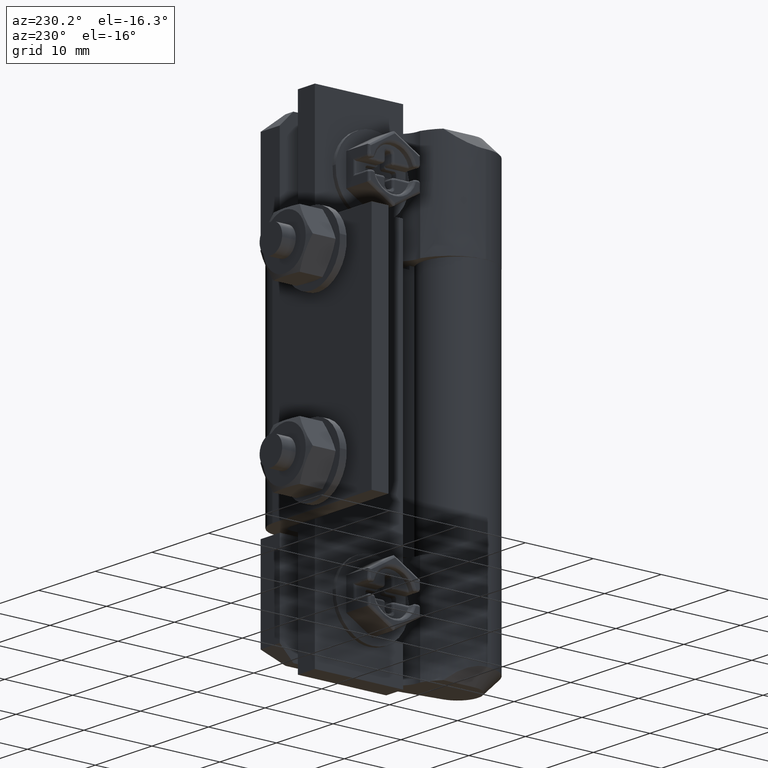
[diagram: clean part render]
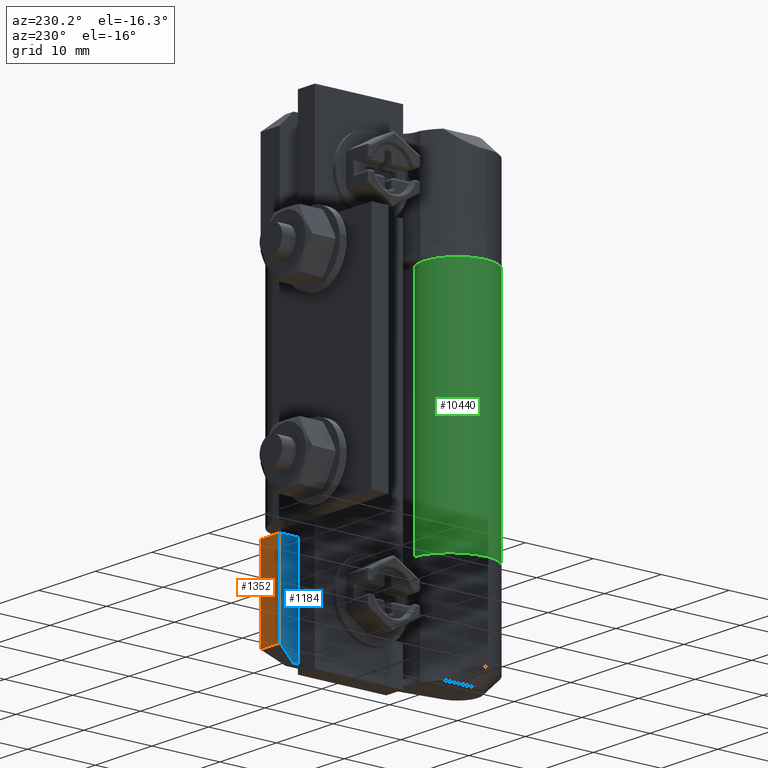
[diagram: same view with three faces highlighted in distinct colors, each labeled with its STEP entity id]
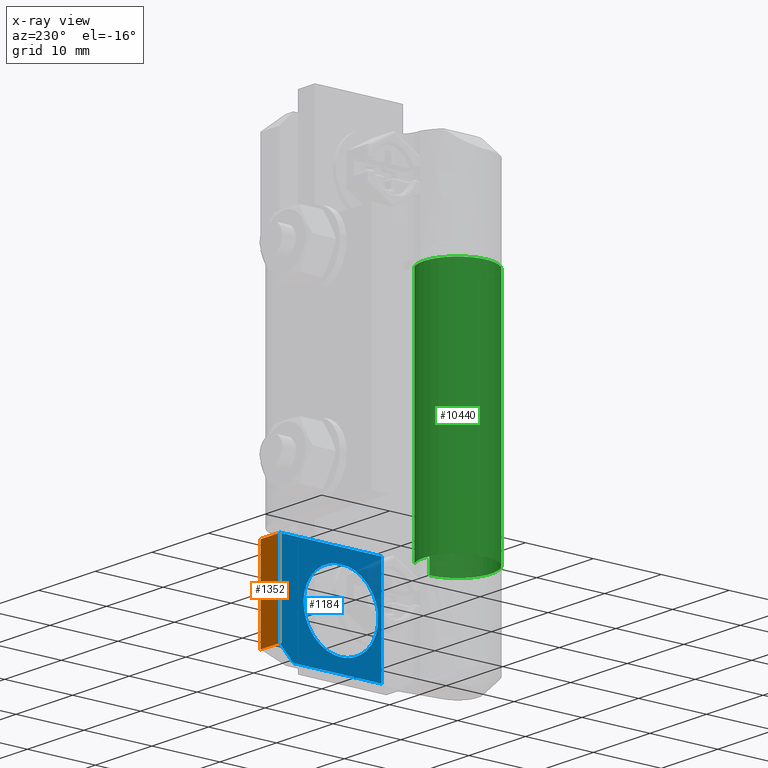
[diagram: x-ray of the same camera — body ghosted, the three highlighted faces saturated]
A machine part, auxiliary view with three faces highlighted in distinct colors.
The next image is the same camera in x-ray (body ghosted, the three faces saturated) — at least one of them is partly hidden behind the body in this view.
Their STEP definitions:

[orange] entity #1352 — the highlighted face is a freeform B-spline surface patch.
#970=CARTESIAN_POINT('',(2.600000123493400,24.000001139938849,1.999999999999820));
#971=VERTEX_POINT('',#970);
#977=CARTESIAN_POINT('',(6.000000284984820,24.000001139938849,2.0));
#978=VERTEX_POINT('',#977);
#979=CARTESIAN_POINT('',(2.600000123493400,24.000001139938849,1.999999999999820));
#980=CARTESIAN_POINT('',(6.000000284984820,24.000001139938849,2.0));
#981=QUASI_UNIFORM_CURVE('',1,(#979,#980),.UNSPECIFIED.,.F.,.U.);
#982=EDGE_CURVE('',#971,#978,#981,.T.);
#1164=CARTESIAN_POINT('',(2.600000123493400,24.000001139938849,15.000000712461750));
#1165=VERTEX_POINT('',#1164);
#1171=CARTESIAN_POINT('',(2.600000123493400,24.000001139938849,1.999999999999820));
#1172=CARTESIAN_POINT('',(2.600000123493400,24.000001139938849,15.000000712461750));
#1173=QUASI_UNIFORM_CURVE('',1,(#1171,#1172),.UNSPECIFIED.,.F.,.U.);
#1174=EDGE_CURVE('',#971,#1165,#1173,.T.);
#1216=CARTESIAN_POINT('',(6.000000284984820,24.000001139938849,15.000000712461750));
#1217=VERTEX_POINT('',#1216);
#1223=CARTESIAN_POINT('',(2.600000123493400,24.000001139938849,15.000000712461750));
#1224=CARTESIAN_POINT('',(6.000000284984820,24.000001139938849,15.000000712461750));
#1225=QUASI_UNIFORM_CURVE('',1,(#1223,#1224),.UNSPECIFIED.,.F.,.U.);
#1226=EDGE_CURVE('',#1165,#1217,#1225,.T.);
#1337=CARTESIAN_POINT('',(6.169830509878839,24.000001139939201,15.649350966922110));
#1338=CARTESIAN_POINT('',(6.169830509878839,24.000001139939201,1.350649629310398));
#1339=CARTESIAN_POINT('',(2.430170020192863,24.000001139939201,15.649350966922110));
#1340=CARTESIAN_POINT('',(2.430170020192863,24.000001139939201,1.350649629310398));
#1341=B_SPLINE_SURFACE_WITH_KNOTS('',1,1,((#1337,#1339),(#1338,#1340)),.UNSPECIFIED.,.F.,.F.,.U.,(2,2),(2,2),(0.0,14.298701337611710),(0.0,3.739660489685976),.UNSPECIFIED.);
#1342=ORIENTED_EDGE('',*,*,#1174,.T.);
#1343=ORIENTED_EDGE('',*,*,#1226,.T.);
#1344=CARTESIAN_POINT('',(6.000000284984820,24.000001139938849,2.0));
#1345=CARTESIAN_POINT('',(6.000000284984820,24.000001139938849,15.000000712461750));
#1346=QUASI_UNIFORM_CURVE('',1,(#1344,#1345),.UNSPECIFIED.,.F.,.U.);
#1347=EDGE_CURVE('',#978,#1217,#1346,.T.);
#1348=ORIENTED_EDGE('',*,*,#1347,.F.);
#1349=ORIENTED_EDGE('',*,*,#982,.F.);
#1350=EDGE_LOOP('',(#1342,#1343,#1348,#1349));
#1351=FACE_OUTER_BOUND('',#1350,.T.);
#1352=ADVANCED_FACE('',(#1351),#1341,.T.);

[blue] entity #1184 — the highlighted face is a freeform B-spline surface patch.
#692=CARTESIAN_POINT('',(2.600000124433443,9.536785464718623,8.135053617650666));
#693=VERTEX_POINT('',#692);
#694=CARTESIAN_POINT('',(2.600000123493375,14.999999478022520,2.000000356230890));
#695=VERTEX_POINT('',#694);
#696=CARTESIAN_POINT('',(2.600000124433443,9.536785464718623,8.135053617650668));
#697=CARTESIAN_POINT('',(2.600000123493375,9.499999478022522,7.818592416391305));
#698=CARTESIAN_POINT('',(2.600000123493375,9.499999478022522,7.500000356230890));
#699=CARTESIAN_POINT('',(2.600000123493374,9.499999478022522,2.000000356230890));
#700=CARTESIAN_POINT('',(2.600000123493375,14.999999478022520,2.000000356230890));
#708=(BOUNDED_CURVE()B_SPLINE_CURVE(2,(#696,#697,#698,#699,#700),.UNSPECIFIED.,.F.,.U.)B_SPLINE_CURVE_WITH_KNOTS((3,2,3),(0.229999999992515,0.250000000000000,0.500000000000000),.UNSPECIFIED.)CURVE()GEOMETRIC_REPRESENTATION_ITEM()RATIONAL_B_SPLINE_CURVE((0.956886118175928,0.976568542486155,1.0,0.707106781186548,1.0))REPRESENTATION_ITEM(''));
#709=EDGE_CURVE('',#693,#695,#708,.T.);
#730=CARTESIAN_POINT('',(2.600000124545982,14.999999478022520,13.000000356230890));
#731=VERTEX_POINT('',#730);
#747=CARTESIAN_POINT('',(2.600000123493375,14.999999478022520,2.000000356230890));
#748=CARTESIAN_POINT('',(2.600000123493374,20.499999478022520,2.000000356230890));
#749=CARTESIAN_POINT('',(2.600000123493375,20.499999478022520,7.500000356230890));
#750=CARTESIAN_POINT('',(2.600000123493374,20.499999478022520,13.000000356230890));
#751=CARTESIAN_POINT('',(2.600000124545982,14.999999478022520,13.000000356230890));
#759=(BOUNDED_CURVE()B_SPLINE_CURVE(2,(#747,#748,#749,#750,#751),.UNSPECIFIED.,.F.,.U.)B_SPLINE_CURVE_WITH_KNOTS((3,2,3),(0.500000000000000,0.750000000000000,1.0),.UNSPECIFIED.)CURVE()GEOMETRIC_REPRESENTATION_ITEM()RATIONAL_B_SPLINE_CURVE((1.0,0.707106781186548,1.0,0.707106781186548,1.0))REPRESENTATION_ITEM(''));
#760=EDGE_CURVE('',#695,#731,#759,.T.);
#788=CARTESIAN_POINT('',(2.600000124545982,14.999999478022520,13.000000356230890));
#789=CARTESIAN_POINT('',(2.600000123493375,10.102295123692507,13.000000356230890));
#790=CARTESIAN_POINT('',(2.600000124433443,9.536785464718623,8.135053617650668));
#798=(BOUNDED_CURVE()B_SPLINE_CURVE(2,(#788,#789,#790),.UNSPECIFIED.,.F.,.U.)B_SPLINE_CURVE_WITH_KNOTS((3,3),(0.0,0.229999999992515),.UNSPECIFIED.)CURVE()GEOMETRIC_REPRESENTATION_ITEM()RATIONAL_B_SPLINE_CURVE((1.0,0.730538238700393,0.956886118175928))REPRESENTATION_ITEM(''));
#799=EDGE_CURVE('',#731,#693,#798,.T.);
#968=CARTESIAN_POINT('',(2.600000123493400,22.000001139938949,1.387779E-014));
#969=VERTEX_POINT('',#968);
#970=CARTESIAN_POINT('',(2.600000123493400,24.000001139938849,1.999999999999820));
#971=VERTEX_POINT('',#970);
#972=CARTESIAN_POINT('',(2.600000123493400,22.000001139938949,1.387779E-014));
#973=CARTESIAN_POINT('',(2.600000123493400,24.000001139938849,1.999999999999820));
#974=QUASI_UNIFORM_CURVE('',1,(#972,#973),.UNSPECIFIED.,.F.,.U.);
#975=EDGE_CURVE('',#969,#971,#974,.T.);
#1145=CARTESIAN_POINT('',(2.600000123493400,24.749251991309059,15.749251000594850));
#1146=CARTESIAN_POINT('',(2.600000123493400,24.749251991309059,-0.749250422243584));
#1147=CARTESIAN_POINT('',(2.600000123493400,8.250749978438231,15.749251000594850));
#1148=CARTESIAN_POINT('',(2.600000123493400,8.250749978438231,-0.749250422243584));
#1149=B_SPLINE_SURFACE_WITH_KNOTS('',1,1,((#1145,#1147),(#1146,#1148)),.UNSPECIFIED.,.F.,.F.,.U.,(2,2),(2,2),(0.0,16.498501422838441),(0.0,16.498502012870830),.UNSPECIFIED.);
#1150=CARTESIAN_POINT('',(2.600000123493380,9.000000427477069,-2.775558E-014));
#1151=VERTEX_POINT('',#1150);
#1152=CARTESIAN_POINT('',(2.600000123493380,9.000000427477069,-2.775558E-014));
#1153=CARTESIAN_POINT('',(2.600000123493400,22.000001139938949,1.387779E-014));
#1154=QUASI_UNIFORM_CURVE('',1,(#1152,#1153),.UNSPECIFIED.,.F.,.U.);
#1155=EDGE_CURVE('',#1151,#969,#1154,.T.);
#1156=ORIENTED_EDGE('',*,*,#1155,.F.);
#1157=CARTESIAN_POINT('',(2.600000123493380,9.000000427477060,15.000000712461750));
#1158=VERTEX_POINT('',#1157);
#1159=CARTESIAN_POINT('',(2.600000123493380,9.000000427477069,-2.775558E-014));
#1160=CARTESIAN_POINT('',(2.600000123493380,9.000000427477060,15.000000712461750));
#1161=QUASI_UNIFORM_CURVE('',1,(#1159,#1160),.UNSPECIFIED.,.F.,.U.);
#1162=EDGE_CURVE('',#1151,#1158,#1161,.T.);
#1163=ORIENTED_EDGE('',*,*,#1162,.T.);
#1164=CARTESIAN_POINT('',(2.600000123493400,24.000001139938849,15.000000712461750));
#1165=VERTEX_POINT('',#1164);
#1166=CARTESIAN_POINT('',(2.600000123493380,9.000000427477060,15.000000712461750));
#1167=CARTESIAN_POINT('',(2.600000123493400,24.000001139938849,15.000000712461750));
#1168=QUASI_UNIFORM_CURVE('',1,(#1166,#1167),.UNSPECIFIED.,.F.,.U.);
#1169=EDGE_CURVE('',#1158,#1165,#1168,.T.);
#1170=ORIENTED_EDGE('',*,*,#1169,.T.);
#1171=CARTESIAN_POINT('',(2.600000123493400,24.000001139938849,1.999999999999820));
#1172=CARTESIAN_POINT('',(2.600000123493400,24.000001139938849,15.000000712461750));
#1173=QUASI_UNIFORM_CURVE('',1,(#1171,#1172),.UNSPECIFIED.,.F.,.U.);
#1174=EDGE_CURVE('',#971,#1165,#1173,.T.);
#1175=ORIENTED_EDGE('',*,*,#1174,.F.);
#1176=ORIENTED_EDGE('',*,*,#975,.F.);
#1177=EDGE_LOOP('',(#1156,#1163,#1170,#1175,#1176));
#1178=FACE_OUTER_BOUND('',#1177,.T.);
#1179=ORIENTED_EDGE('',*,*,#760,.T.);
#1180=ORIENTED_EDGE('',*,*,#799,.T.);
#1181=ORIENTED_EDGE('',*,*,#709,.T.);
#1182=EDGE_LOOP('',(#1179,#1180,#1181));
#1183=FACE_BOUND('',#1182,.T.);
#1184=ADVANCED_FACE('',(#1178,#1183),#1149,.T.);

[green] entity #10440 — the highlighted face is a freeform B-spline surface patch.
#10253=CARTESIAN_POINT('',(4.975000260141680,0.0,15.000000712461750));
#10254=VERTEX_POINT('',#10253);
#10262=CARTESIAN_POINT('',(2.375000141398000,4.371498818113680,15.000000712461750));
#10263=VERTEX_POINT('',#10262);
#10264=CARTESIAN_POINT('',(4.975000260141680,0.0,15.000000712461750));
#10265=CARTESIAN_POINT('',(4.975000260141680,-3.791905394601394,15.000000712461745));
#10266=CARTESIAN_POINT('',(1.318737417264934,-4.797036503166845,15.000000712461750));
#10267=CARTESIAN_POINT('',(-2.337525425611813,-5.802167611732297,15.000000712461745));
#10268=CARTESIAN_POINT('',(-4.275877331595315,-2.543128119768864,15.000000712461750));
#10269=CARTESIAN_POINT('',(-6.214229237578820,0.715911372194569,15.000000712461745));
#10270=CARTESIAN_POINT('',(-3.585575260062999,3.448808148162775,15.000000712461750));
#10271=CARTESIAN_POINT('',(-0.956921282547177,6.181704924130981,15.000000712461745));
#10272=CARTESIAN_POINT('',(2.375000141397996,4.371498818113678,15.000000712461750));
#10280=(BOUNDED_CURVE()B_SPLINE_CURVE(2,(#10264,#10265,#10266,#10267,#10268,#10269,#10270,#10271,#10272),.UNSPECIFIED.,.F.,.U.)B_SPLINE_CURVE_WITH_KNOTS((3,2,2,2,3),(0.0,0.250000000000000,0.500000000000000,0.750000000000000,1.0),.UNSPECIFIED.)CURVE()GEOMETRIC_REPRESENTATION_ITEM()RATIONAL_B_SPLINE_CURVE((1.0,0.795321580818364,1.0,0.795321580818364,1.0,0.795321580818364,1.0,0.795321580818364,1.0))REPRESENTATION_ITEM(''));
#10281=EDGE_CURVE('',#10254,#10263,#10280,.T.);
#10331=CARTESIAN_POINT('',(4.975000260141680,0.0,50.000000467523797));
#10332=VERTEX_POINT('',#10331);
#10375=CARTESIAN_POINT('',(2.375000141398000,4.371498818113680,50.000000467523797));
#10376=VERTEX_POINT('',#10375);
#10382=CARTESIAN_POINT('',(4.975000260141680,0.0,50.000000467523797));
#10383=CARTESIAN_POINT('',(4.975000260141680,-3.791905394601394,50.000000467523797));
#10384=CARTESIAN_POINT('',(1.318737417264934,-4.797036503166845,50.000000467523797));
#10385=CARTESIAN_POINT('',(-2.337525425611813,-5.802167611732297,50.000000467523797));
#10386=CARTESIAN_POINT('',(-4.275877331595315,-2.543128119768864,50.000000467523797));
#10387=CARTESIAN_POINT('',(-6.214229237578820,0.715911372194569,50.000000467523797));
#10388=CARTESIAN_POINT('',(-3.585575260062999,3.448808148162775,50.000000467523797));
#10389=CARTESIAN_POINT('',(-0.956921282547177,6.181704924130981,50.000000467523797));
#10390=CARTESIAN_POINT('',(2.375000141397996,4.371498818113678,50.000000467523797));
#10398=(BOUNDED_CURVE()B_SPLINE_CURVE(2,(#10382,#10383,#10384,#10385,#10386,#10387,#10388,#10389,#10390),.UNSPECIFIED.,.F.,.U.)B_SPLINE_CURVE_WITH_KNOTS((3,2,2,2,3),(0.0,0.250000000000000,0.500000000000000,0.750000000000000,1.0),.UNSPECIFIED.)CURVE()GEOMETRIC_REPRESENTATION_ITEM()RATIONAL_B_SPLINE_CURVE((1.0,0.795321580818364,1.0,0.795321580818364,1.0,0.795321580818364,1.0,0.795321580818364,1.0))REPRESENTATION_ITEM(''));
#10399=EDGE_CURVE('',#10332,#10376,#10398,.T.);
#10404=CARTESIAN_POINT('',(2.525003487761385,4.286605297342247,50.875000461400347));
#10405=CARTESIAN_POINT('',(2.525003487761385,4.286605297342247,14.103125718738280));
#10406=CARTESIAN_POINT('',(-2.737141367238976,7.386245499863252,50.875000461400354));
#10407=CARTESIAN_POINT('',(-2.737141367238976,7.386245499863252,14.103125718738283));
#10408=CARTESIAN_POINT('',(-4.708646772587700,1.606011568890217,50.875000461400347));
#10409=CARTESIAN_POINT('',(-4.708646772587700,1.606011568890217,14.103125718738280));
#10410=CARTESIAN_POINT('',(-6.680152177936423,-4.174222362082820,50.875000461400354));
#10411=CARTESIAN_POINT('',(-6.680152177936423,-4.174222362082820,14.103125718738283));
#10412=CARTESIAN_POINT('',(-0.620661249117843,-4.936132818538543,50.875000461400347));
#10413=CARTESIAN_POINT('',(-0.620661249117843,-4.936132818538543,14.103125718738280));
#10414=CARTESIAN_POINT('',(5.438829679700737,-5.698043274994268,50.875000461400354));
#10415=CARTESIAN_POINT('',(5.438829679700737,-5.698043274994268,14.103125718738283));
#10416=CARTESIAN_POINT('',(4.959663994662061,0.390334021656513,50.875000461400347));
#10417=CARTESIAN_POINT('',(4.959663994662061,0.390334021656513,14.103125718738280));
#10425=(BOUNDED_SURFACE()B_SPLINE_SURFACE(1,2,((#10404,#10406,#10408,#10410,#10412,#10414,#10416),(#10405,#10407,#10409,#10411,#10413,#10415,#10417)),.UNSPECIFIED.,.F.,.F.,.U.)B_SPLINE_SURFACE_WITH_KNOTS((2,2),(3,2,2,3),(0.0,36.771874742662071),(0.0,9.456310041346329,18.912620082692658,28.368930124038990),.UNSPECIFIED.)GEOMETRIC_REPRESENTATION_ITEM()RATIONAL_B_SPLINE_SURFACE(((1.0,0.631578351302498,1.0,0.631578351302498,1.0,0.631578351302498,1.0),(1.0,0.631578351302498,1.0,0.631578351302498,1.0,0.631578351302498,1.0)))REPRESENTATION_ITEM('')SURFACE());
#10426=ORIENTED_EDGE('',*,*,#10281,.F.);
#10427=CARTESIAN_POINT('',(4.975000260141680,0.0,50.000000467523797));
#10428=CARTESIAN_POINT('',(4.975000260141680,0.0,15.000000712461750));
#10429=QUASI_UNIFORM_CURVE('',1,(#10427,#10428),.UNSPECIFIED.,.F.,.U.);
#10430=EDGE_CURVE('',#10332,#10254,#10429,.T.);
#10431=ORIENTED_EDGE('',*,*,#10430,.F.);
#10432=ORIENTED_EDGE('',*,*,#10399,.T.);
#10433=CARTESIAN_POINT('',(2.375000141398000,4.371498818113680,50.000000467523797));
#10434=CARTESIAN_POINT('',(2.375000141398000,4.371498818113680,15.000000712461750));
#10435=QUASI_UNIFORM_CURVE('',1,(#10433,#10434),.UNSPECIFIED.,.F.,.U.);
#10436=EDGE_CURVE('',#10376,#10263,#10435,.T.);
#10437=ORIENTED_EDGE('',*,*,#10436,.T.);
#10438=EDGE_LOOP('',(#10426,#10431,#10432,#10437));
#10439=FACE_OUTER_BOUND('',#10438,.T.);
#10440=ADVANCED_FACE('',(#10439),#10425,.T.);